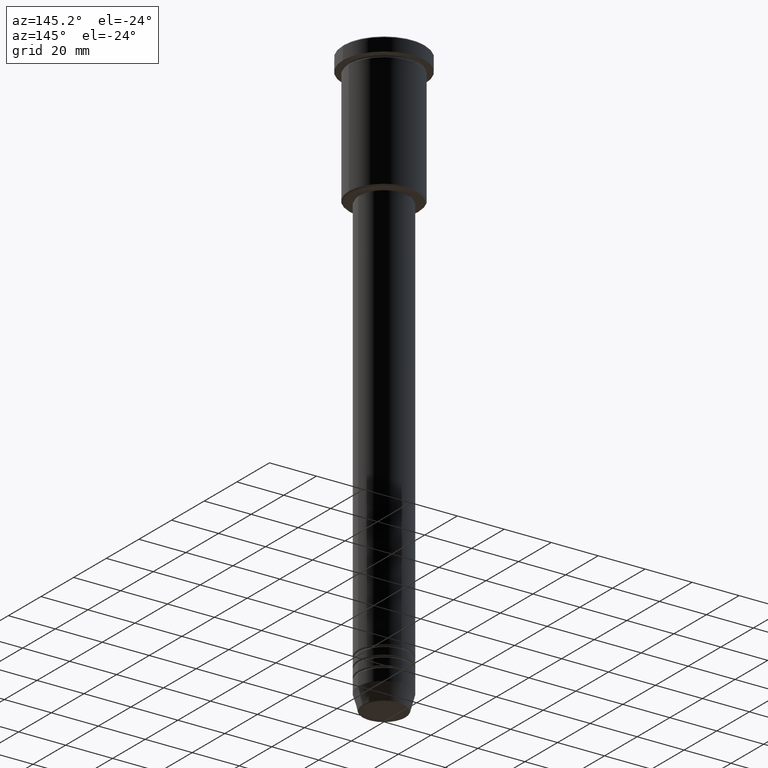
[diagram: clean part render]
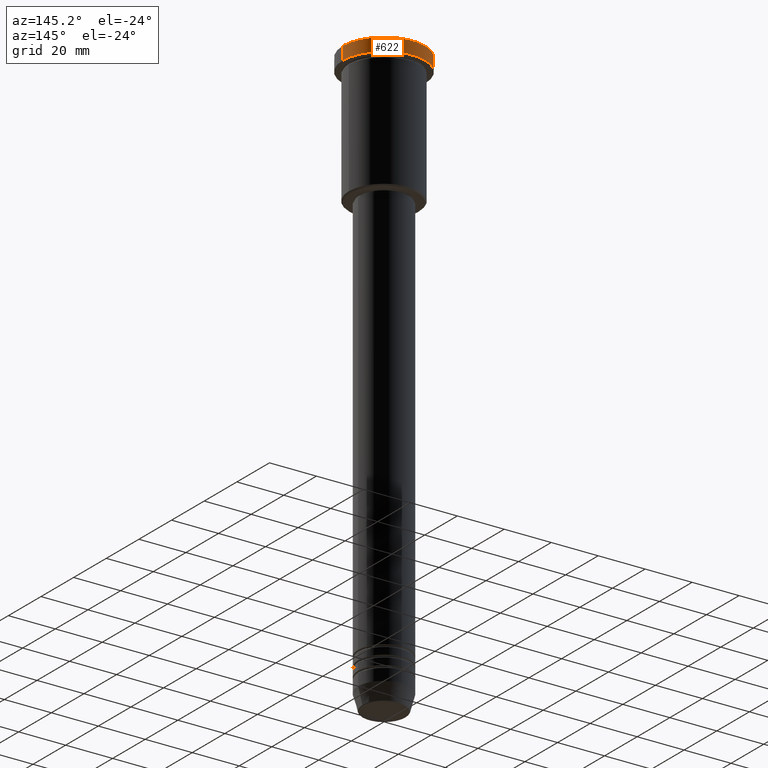
[diagram: same view with one face highlighted and labeled with its STEP entity id]
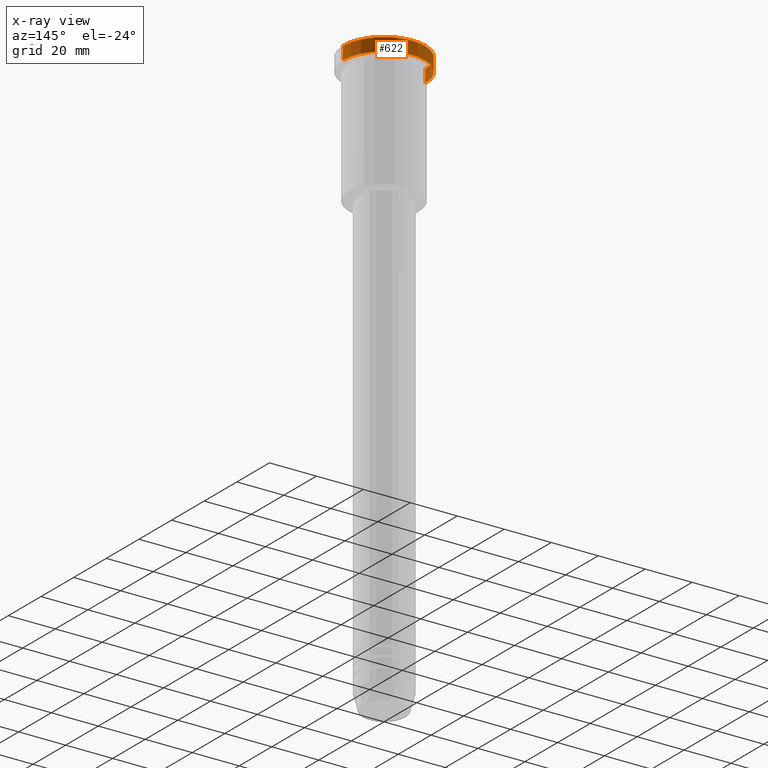
[diagram: x-ray of the same camera — body ghosted, the highlighted face saturated]
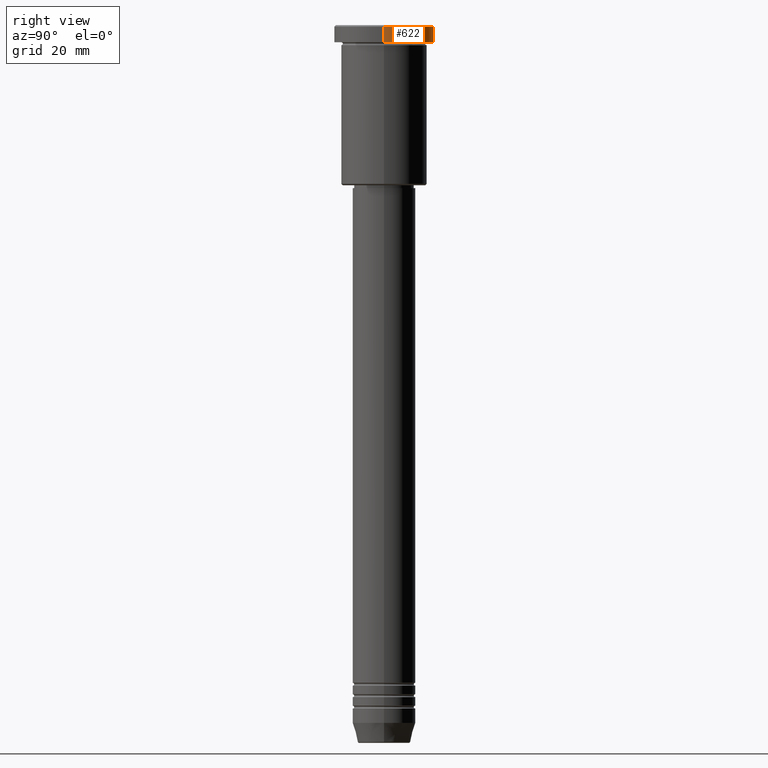
[diagram: same view with one face highlighted and labeled with its STEP entity id]
A machine part, auxiliary view. The second image highlights one B-rep face of the part: STEP entity #622.
The next image is the same camera in x-ray: the body ghosted, the highlighted face saturated — about 0% of this face is hidden behind the body in this view.
A second angle (right view) of the same face is appended — the face is thin or edge-on in the first view.
In plain terms, the highlighted cylindrical surface (partial cylindrical patch) has radius 17.5 mm, axis along (-0, -0, 1).
Its self-contained STEP definition (entity closure, byte-faithful):
#76 = VERTEX_POINT ( 'NONE', #447 ) ;
#77 = DIRECTION ( 'NONE',  ( 0.000000000000000000, 0.000000000000000000, -1.000000000000000000 ) ) ;
#78 = EDGE_CURVE ( 'NONE', #564, #909, #172, .T. ) ;
#102 = FACE_OUTER_BOUND ( 'NONE', #219, .T. ) ;
#172 = CIRCLE ( 'NONE', #434, 17.50000000000000000 ) ;
#183 = EDGE_CURVE ( 'NONE', #827, #909, #1002, .T. ) ;
#219 = EDGE_LOOP ( 'NONE', ( #534, #1151, #877, #943 ) ) ;
#379 = CYLINDRICAL_SURFACE ( 'NONE', #674, 17.50000000000000000 ) ;
#434 = AXIS2_PLACEMENT_3D ( 'NONE', #889, #77, #716 ) ;
#447 = CARTESIAN_POINT ( 'NONE',  ( -17.50000000000000000, 2.143131898507868248E-15, -5.999999999999995559 ) ) ;
#456 = AXIS2_PLACEMENT_3D ( 'NONE', #689, #781, #614 ) ;
#471 = EDGE_CURVE ( 'NONE', #76, #564, #999, .T. ) ;
#481 = DIRECTION ( 'NONE',  ( -0.000000000000000000, -0.000000000000000000, 1.000000000000000000 ) ) ;
#534 = ORIENTED_EDGE ( 'NONE', *, *, #846, .T. ) ;
#564 = VERTEX_POINT ( 'NONE', #1121 ) ;
#614 = DIRECTION ( 'NONE',  ( 1.000000000000000000, 0.000000000000000000, 0.000000000000000000 ) ) ;
#622 = ADVANCED_FACE ( 'NONE', ( #102 ), #379, .T. ) ;
#674 = AXIS2_PLACEMENT_3D ( 'NONE', #829, #740, #1015 ) ;
#689 = CARTESIAN_POINT ( 'NONE',  ( 0.000000000000000000, 0.000000000000000000, -5.999999999999995559 ) ) ;
#716 = DIRECTION ( 'NONE',  ( 1.000000000000000000, 0.000000000000000000, 0.000000000000000000 ) ) ;
#740 = DIRECTION ( 'NONE',  ( -0.000000000000000000, -0.000000000000000000, 1.000000000000000000 ) ) ;
#781 = DIRECTION ( 'NONE',  ( -0.000000000000000000, -0.000000000000000000, 1.000000000000000000 ) ) ;
#806 = CIRCLE ( 'NONE', #456, 17.50000000000000000 ) ;
#808 = CARTESIAN_POINT ( 'NONE',  ( -17.50000000000000000, 2.143131898507868248E-15, 0.000000000000000000 ) ) ;
#827 = VERTEX_POINT ( 'NONE', #873 ) ;
#829 = CARTESIAN_POINT ( 'NONE',  ( 0.000000000000000000, 0.000000000000000000, 0.000000000000000000 ) ) ;
#846 = EDGE_CURVE ( 'NONE', #827, #76, #806, .T. ) ;
#862 = CARTESIAN_POINT ( 'NONE',  ( 17.50000000000000000, 0.000000000000000000, -0.5000000000000283107 ) ) ;
#873 = CARTESIAN_POINT ( 'NONE',  ( 17.50000000000000000, 0.000000000000000000, -5.999999999999995559 ) ) ;
#877 = ORIENTED_EDGE ( 'NONE', *, *, #78, .T. ) ;
#889 = CARTESIAN_POINT ( 'NONE',  ( 0.000000000000000000, 0.000000000000000000, -0.5000000000000283107 ) ) ;
#900 = VECTOR ( 'NONE', #481, 1000.000000000000000 ) ;
#909 = VERTEX_POINT ( 'NONE', #862 ) ;
#943 = ORIENTED_EDGE ( 'NONE', *, *, #183, .F. ) ;
#999 = LINE ( 'NONE', #808, #1154 ) ;
#1002 = LINE ( 'NONE', #1011, #900 ) ;
#1011 = CARTESIAN_POINT ( 'NONE',  ( 17.50000000000000000, 0.000000000000000000, 0.000000000000000000 ) ) ;
#1015 = DIRECTION ( 'NONE',  ( 1.000000000000000000, 0.000000000000000000, 0.000000000000000000 ) ) ;
#1121 = CARTESIAN_POINT ( 'NONE',  ( -17.50000000000000000, 2.143131898507868248E-15, -0.5000000000000283107 ) ) ;
#1151 = ORIENTED_EDGE ( 'NONE', *, *, #471, .T. ) ;
#1154 = VECTOR ( 'NONE', #1177, 1000.000000000000000 ) ;
#1177 = DIRECTION ( 'NONE',  ( -0.000000000000000000, -0.000000000000000000, 1.000000000000000000 ) ) ;